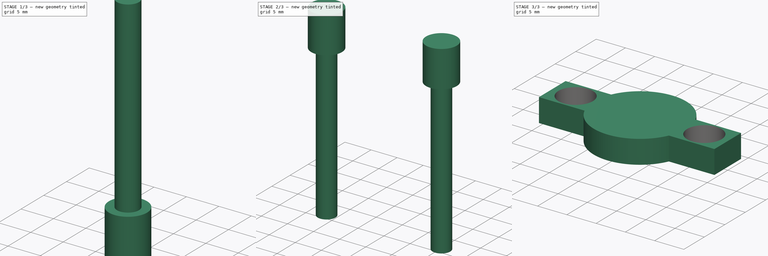
[diagram: build sequence overview — one tinted view per stage of 3, left to right]
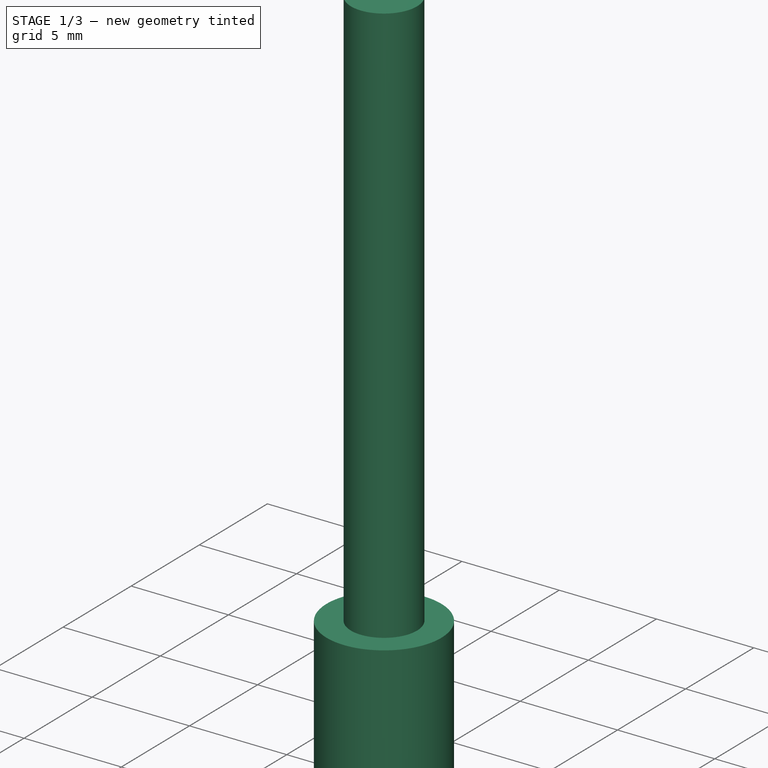
[diagram: stage 1 of 3 — iso view after this stage's code; geometry added in this stage tinted green]
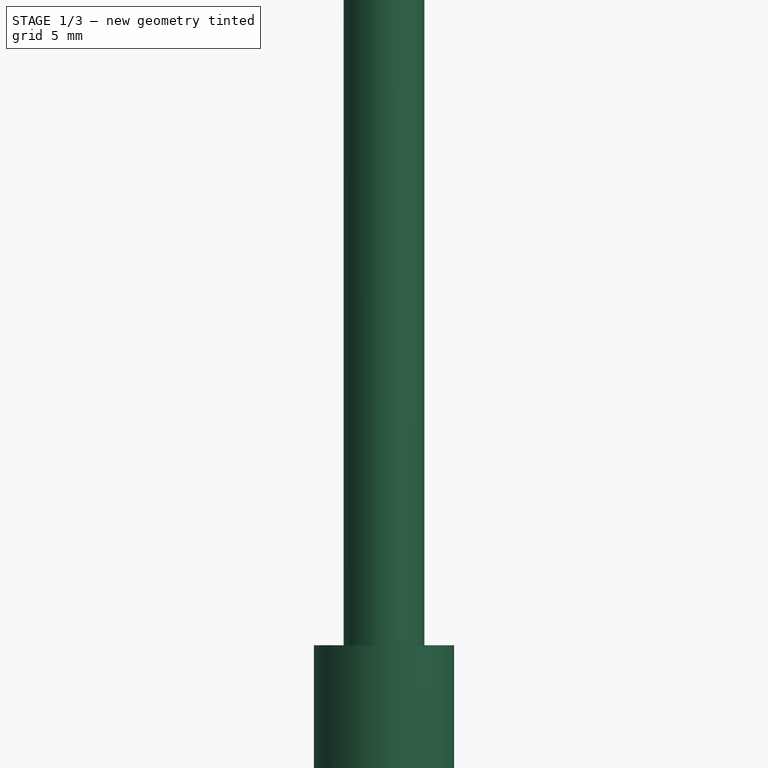
[diagram: stage 1 of 3 — front view after this stage's code; geometry added in this stage tinted green]
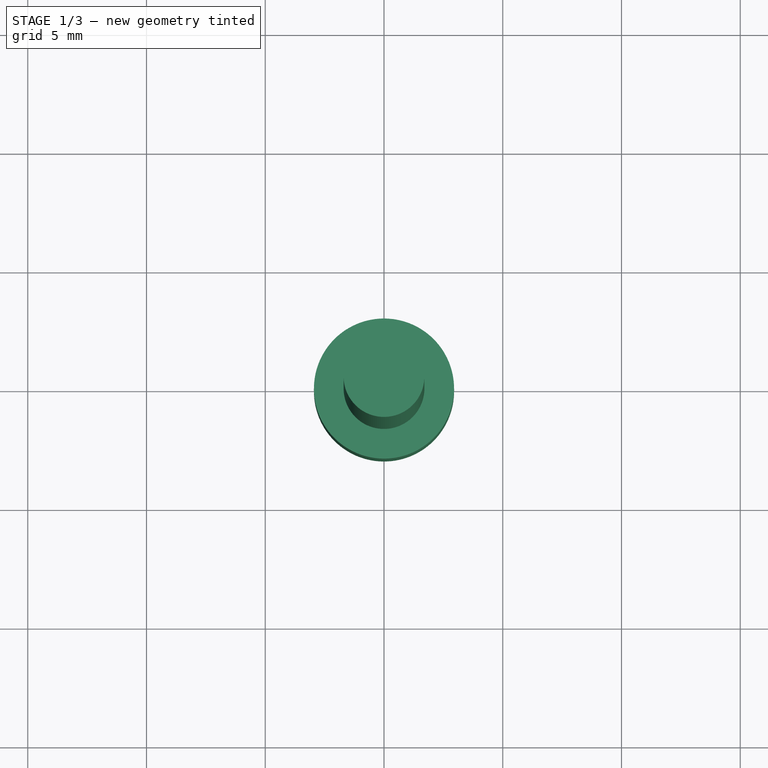
[diagram: stage 1 of 3 — top view after this stage's code; geometry added in this stage tinted green]
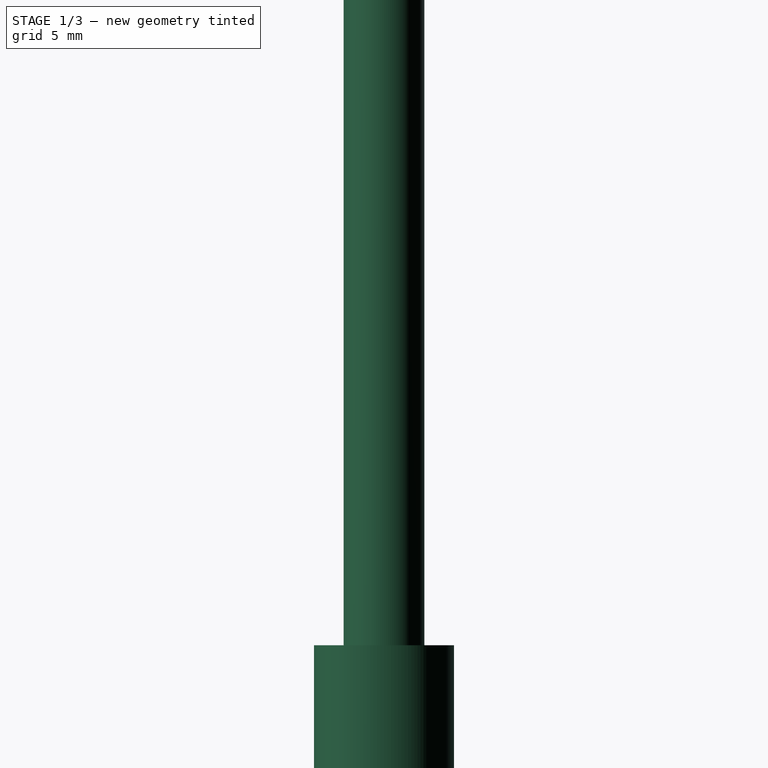
[diagram: stage 1 of 3 — right view after this stage's code; geometry added in this stage tinted green]
FCSTD DOCUMENT  (FreeCAD 0.16R6460 (Git))
Label: CommonBearingFix
License: All rights reserved
LicenseURL: http://en.wikipedia.org/wiki/All_rights_reserved
objects: Part::Cylinder×2, Part::MultiFuse×2, Part::FeaturePython×2, Sketcher::SketchObject×1, PartDesign::Pad×1, Part::Cut×1, App::DocumentObjectGroup×1
note: 10 computed .brp shape members not serialized (recipe doc carries the construction recipe); baked Part::Feature solids carry a one-line shape summary decoded from their .brp

FEATURE [Part::Cylinder] Cylinder  label="M3BoltHead"
  Angle = 360
  Height = 7
  Radius = 2.95
FEATURE [Part::Cylinder] Cylinder001  label="M3BoltBody"
  Angle = 360
  Height = 30
  Placement = pos=(0,0,6) rot=(0,0,1;0rad)
  Radius = 1.7
FEATURE [Part::MultiFuse] Fusion  label="M3Bolt"
  Shapes = -> [Cylinder001,Cylinder]
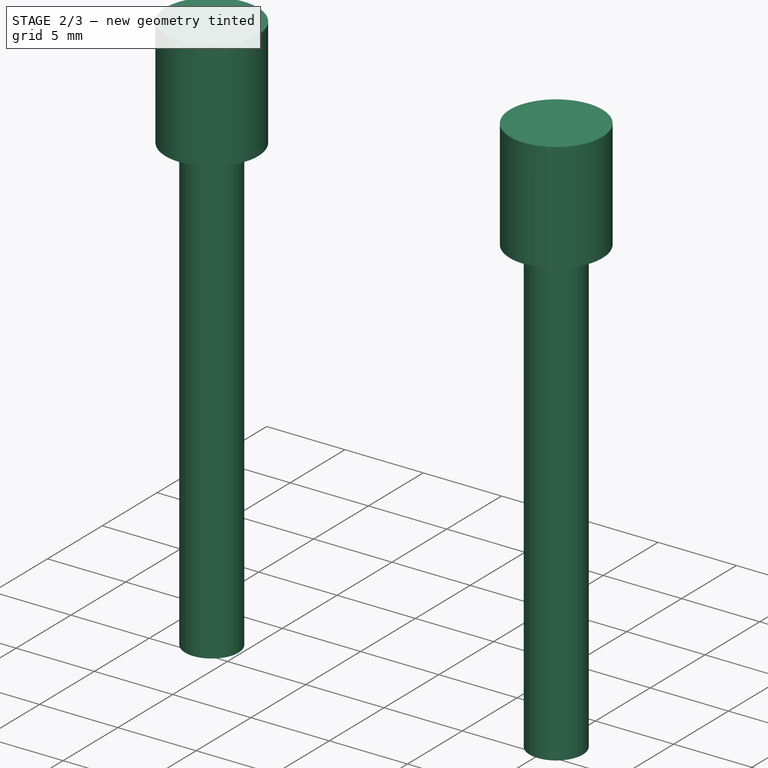
[diagram: stage 2 of 3 — iso view after this stage's code; geometry added in this stage tinted green]
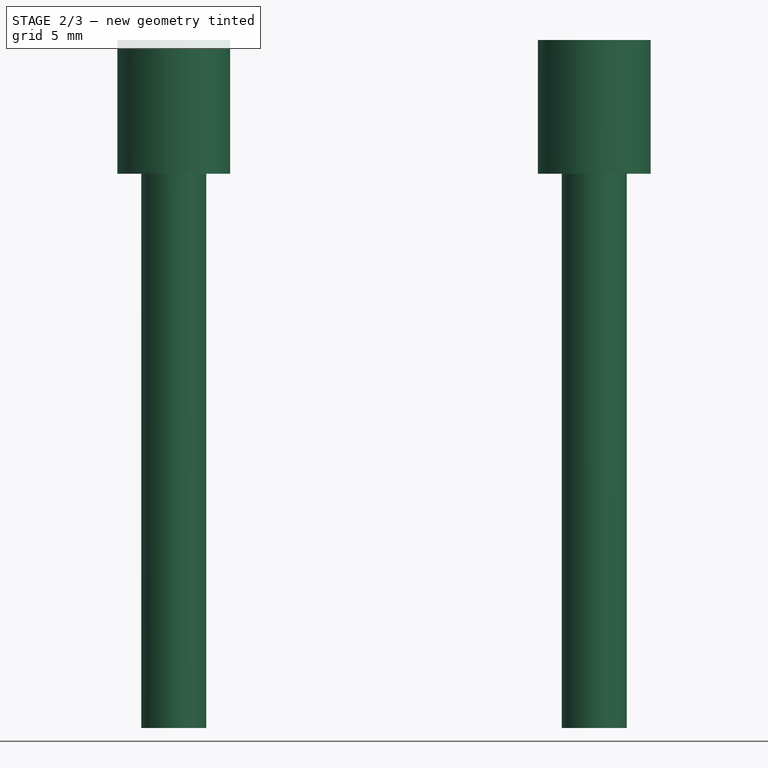
[diagram: stage 2 of 3 — front view after this stage's code; geometry added in this stage tinted green]
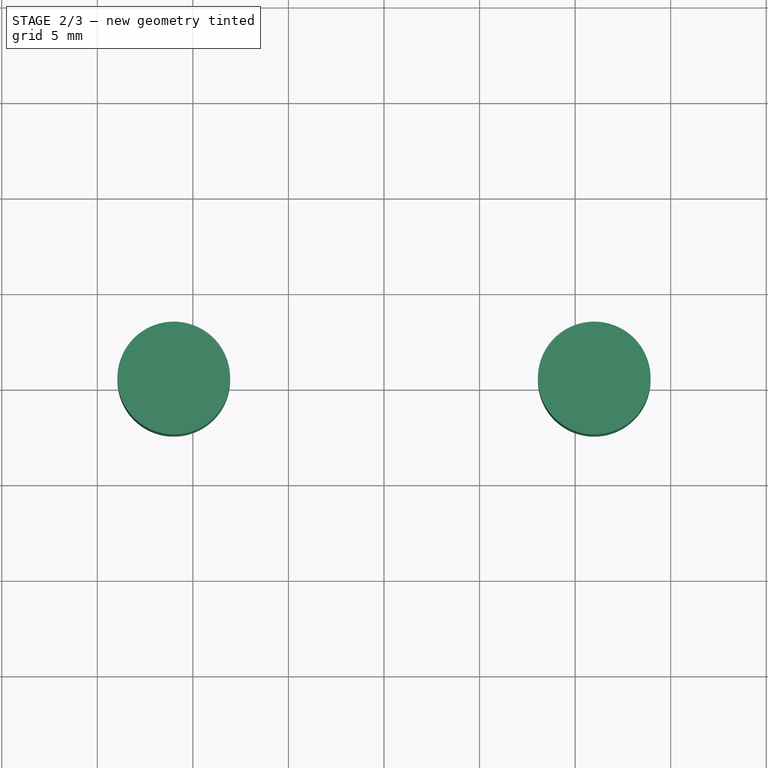
[diagram: stage 2 of 3 — top view after this stage's code; geometry added in this stage tinted green]
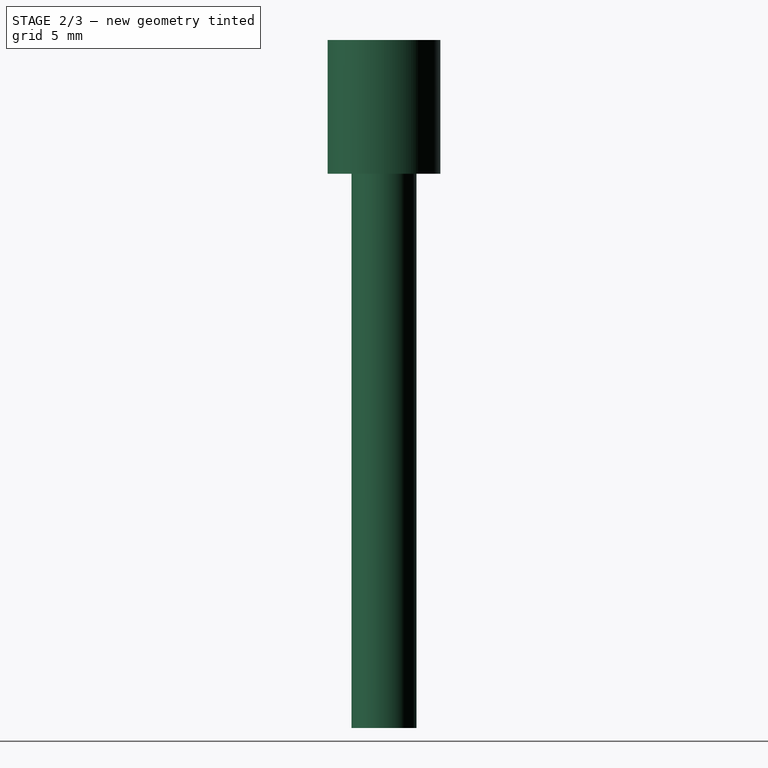
[diagram: stage 2 of 3 — right view after this stage's code; geometry added in this stage tinted green]
FEATURE [Part::FeaturePython] Clone059  label="Clone of M3Bolt019"  # Draft clone (typed FeaturePython)
  Objects = -> [Fusion]
  Placement = pos=(11,0,8) rot=(0,1,0;3.14159rad)
  Scale = (1,1,1)
FEATURE [Part::FeaturePython] Clone060  label="Clone of M3Bolt020"  # Draft clone (typed FeaturePython)
  Objects = -> [Fusion]
  Placement = pos=(-11,0,8) rot=(0,1,0;3.14159rad)
  Scale = (1,1,1)
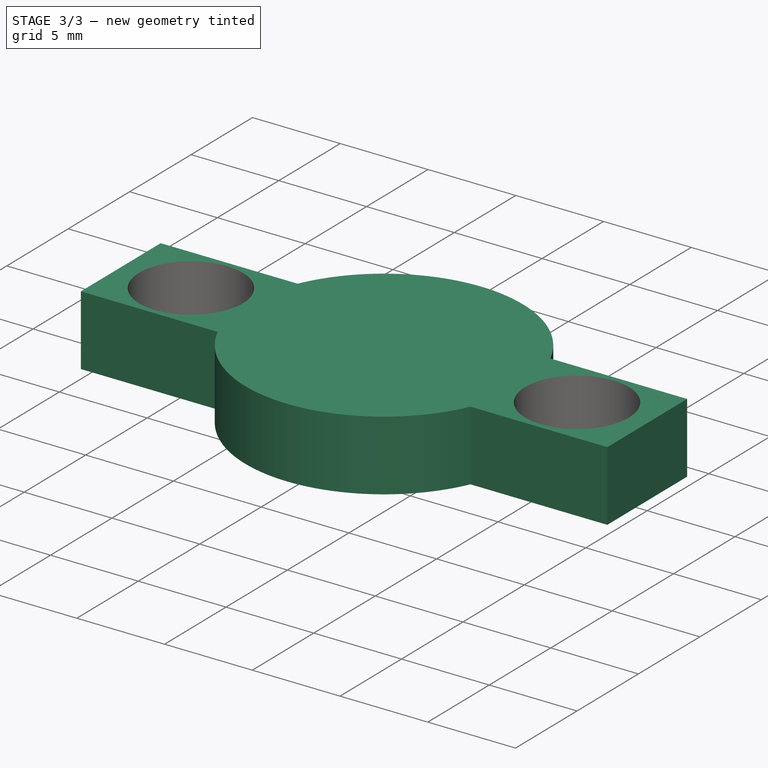
[diagram: stage 3 of 3 — iso view after this stage's code; geometry added in this stage tinted green]
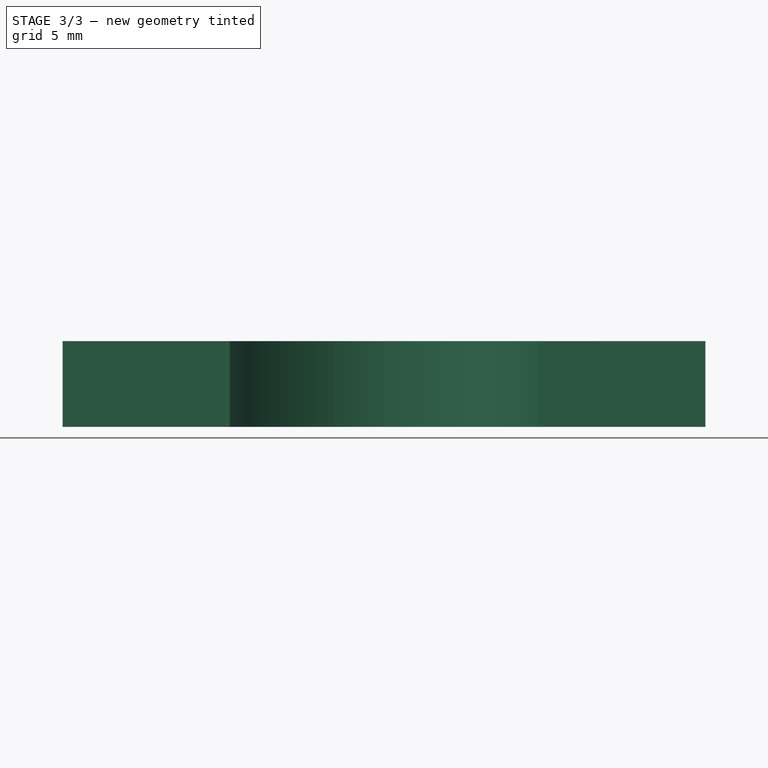
[diagram: stage 3 of 3 — front view after this stage's code; geometry added in this stage tinted green]
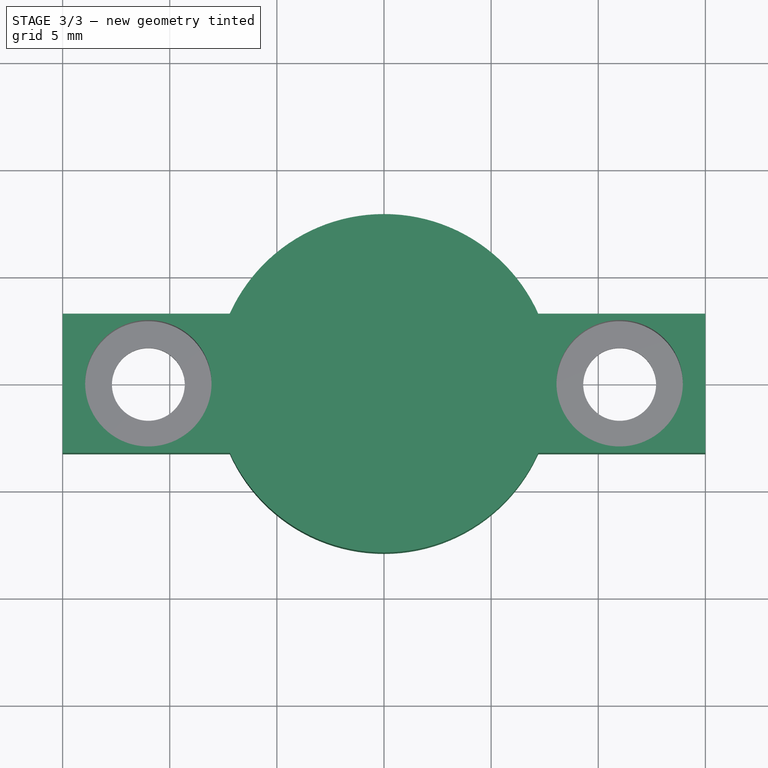
[diagram: stage 3 of 3 — top view after this stage's code; geometry added in this stage tinted green]
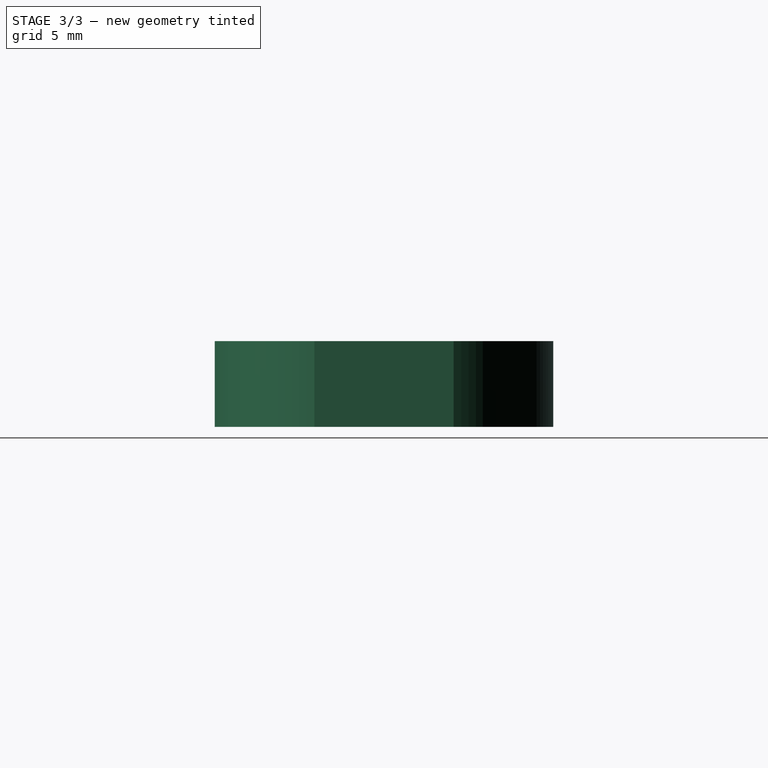
[diagram: stage 3 of 3 — right view after this stage's code; geometry added in this stage tinted green]
FEATURE [Sketcher::SketchObject] Sketch017
  sketch-geometry (8):
    g0: ArcOfCircle CenterX=0 CenterY=0 CenterZ=0 NormalX=0 NormalY=0 NormalZ=1 Radius=7.9 StartAngle=3.56557 EndAngle=5.8592
    g1: LineSegment StartX=7.20052 StartY=3.25 StartZ=0 EndX=15 EndY=3.25 EndZ=0
    g2: LineSegment StartX=15 StartY=3.25 StartZ=0 EndX=15 EndY=-3.25 EndZ=0
    g3: LineSegment StartX=15 StartY=-3.25 StartZ=0 EndX=7.20052 EndY=-3.25 EndZ=0
    g4: LineSegment StartX=-15 StartY=3.25 StartZ=0 EndX=-7.20052 EndY=3.25 EndZ=0
    g5: LineSegment StartX=-7.20052 StartY=-3.25 StartZ=0 EndX=-15 EndY=-3.25 EndZ=0
    g6: LineSegment StartX=-15 StartY=-3.25 StartZ=0 EndX=-15 EndY=3.25 EndZ=0
    g7: ArcOfCircle CenterX=0 CenterY=0 CenterZ=0 NormalX=0 NormalY=0 NormalZ=1 Radius=7.9 StartAngle=0.423981 EndAngle=2.71761
  constraints (26):
    c: Coincident(g0,g-1)
    c: Coincident(g1,g2)
    c: Coincident(g2,g3)
    c: Horizontal(g1)
    c: Horizontal(g3)
    c: Vertical(g2)
    c: Coincident(g5,g6)
    c: Coincident(g6,g4)
    c: Horizontal(g4)
    c: Horizontal(g5)
    c: Vertical(g6)
    c: PointOnObject(g5,g0)
    c: PointOnObject(g4,g0)
    c: Equal(g5,g3)
    c: Equal(g2,g6)
    c: DistanceY(g2) = -6.5
    c: Radius(g0) = 7.9
    c: DistanceX(g2,g5) = -30
    c: Equal(g0,g7)
    c: Coincident(g0,g3)
    c: Coincident(g7,g1)
    c: Coincident(g0,g7)
    c: Coincident(g4,g7)
    c: Coincident(g5,g0)
    c: DistanceY(g-1,g1) = 3.25
    c: DistanceY(g-1,g4) = 3.25
FEATURE [PartDesign::Pad] Pad010
  Length = 4
  Length2 = 100
  Sketch = -> Sketch017
  Type = 0
FEATURE [Part::MultiFuse] Fusion020
  Shapes = -> [Clone059,Clone060]
FEATURE [Part::Cut] Cut021  label="622zzBearingFix"
  Base = -> Pad010
  Tool = -> Fusion020
FEATURE [App::DocumentObjectGroup] Group  label="Master"
  Group = -> [Fusion]
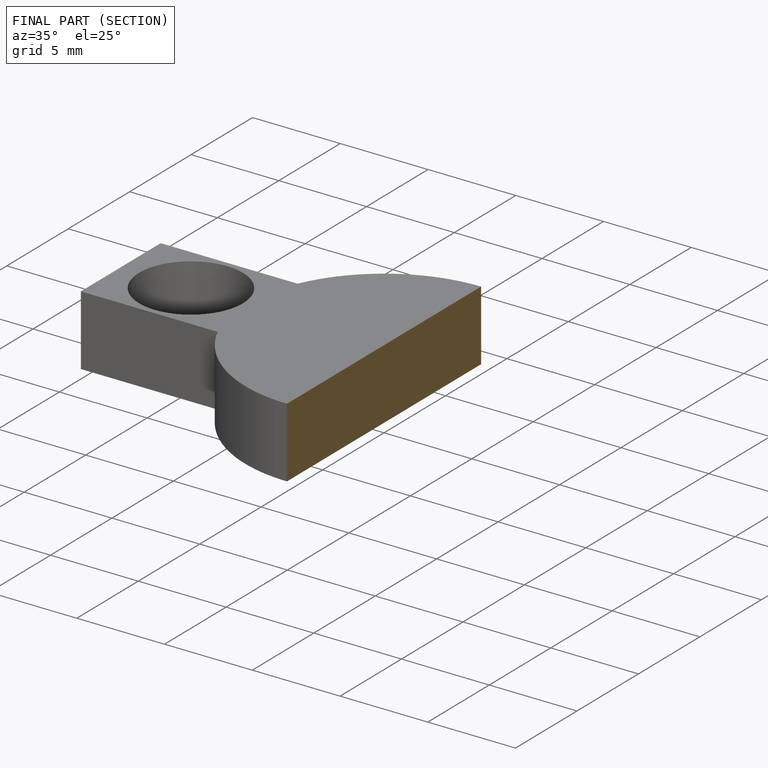
[diagram: finished part — half-section view (interior)]
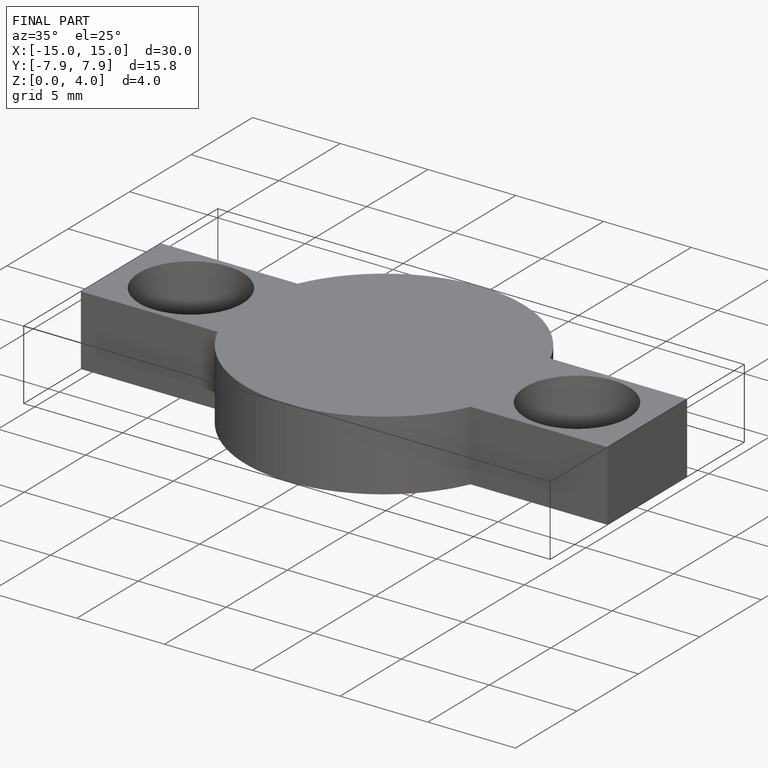
[diagram: finished part — iso view with bounding-box wireframe]
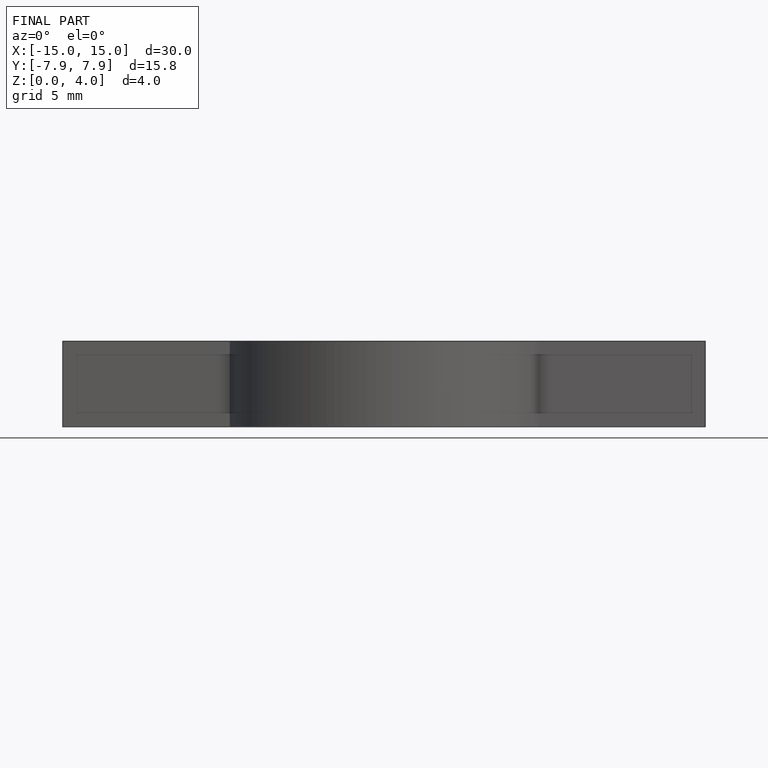
[diagram: finished part — front view with bounding-box wireframe]
